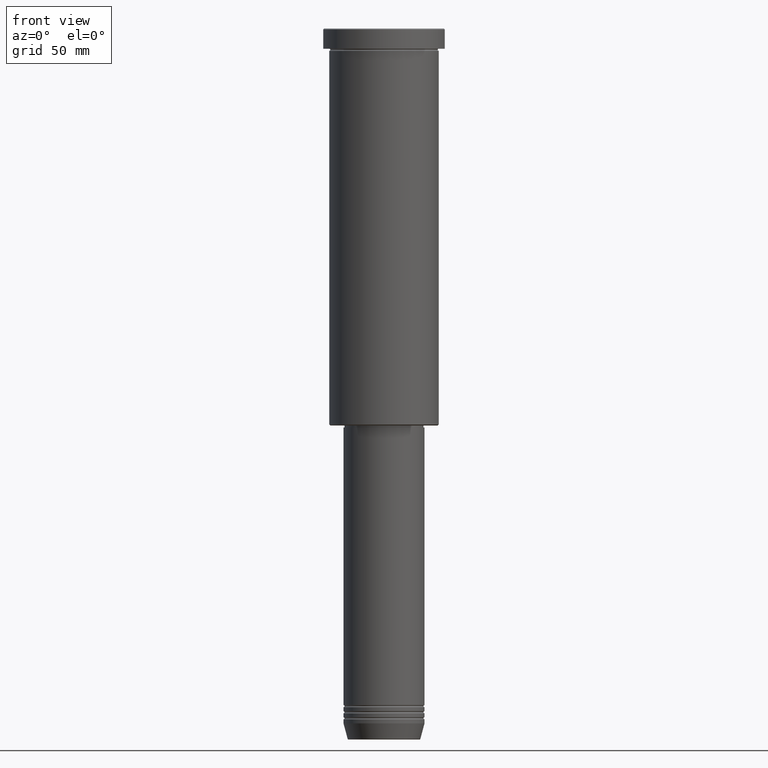
[diagram: clean part render]
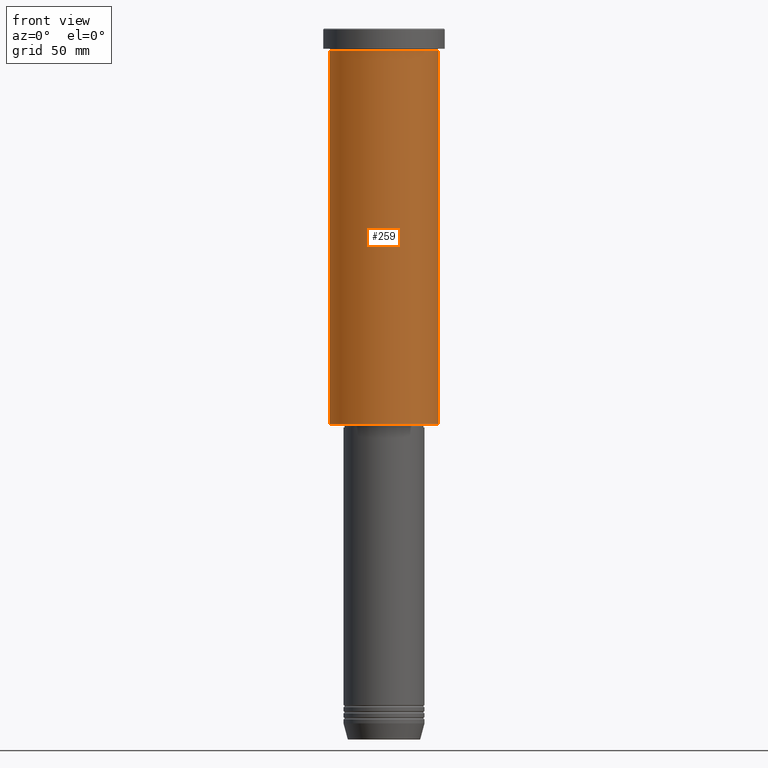
[diagram: same view with one face highlighted and labeled with its STEP entity id]
A machine part, front view. The second image highlights one B-rep face of the part: STEP entity #259.
In plain terms, the highlighted cylindrical surface (partial cylindrical patch) has radius 27 mm, axis along (-0, -0, 1).
Its self-contained STEP definition (entity closure, byte-faithful):
#31 = ORIENTED_EDGE ( 'NONE', *, *, #1048, .F. ) ;
#35 = FACE_OUTER_BOUND ( 'NONE', #36, .T. ) ;
#36 = EDGE_LOOP ( 'NONE', ( #31, #677, #962, #153 ) ) ;
#39 = CARTESIAN_POINT ( 'NONE',  ( -27.00000000000000355, 3.306546357697854128E-15, 0.000000000000000000 ) ) ;
#54 = LINE ( 'NONE', #39, #670 ) ;
#91 = CARTESIAN_POINT ( 'NONE',  ( 27.00000000000000355, 0.000000000000000000, 0.000000000000000000 ) ) ;
#121 = DIRECTION ( 'NONE',  ( -0.000000000000000000, -0.000000000000000000, 1.000000000000000000 ) ) ;
#133 = DIRECTION ( 'NONE',  ( -0.000000000000000000, -0.000000000000000000, 1.000000000000000000 ) ) ;
#145 = VERTEX_POINT ( 'NONE', #831 ) ;
#147 = CARTESIAN_POINT ( 'NONE',  ( 0.000000000000000000, 0.000000000000000000, -195.5000000000000568 ) ) ;
#153 = ORIENTED_EDGE ( 'NONE', *, *, #352, .F. ) ;
#177 = CARTESIAN_POINT ( 'NONE',  ( 27.00000000000000355, 0.000000000000000000, -195.5000000000000568 ) ) ;
#179 = CARTESIAN_POINT ( 'NONE',  ( -27.00000000000000355, 3.306546357697854128E-15, -195.5000000000000568 ) ) ;
#259 = ADVANCED_FACE ( 'NONE', ( #35 ), #1020, .T. ) ;
#315 = CARTESIAN_POINT ( 'NONE',  ( 0.000000000000000000, 0.000000000000000000, 0.000000000000000000 ) ) ;
#343 = DIRECTION ( 'NONE',  ( -0.000000000000000000, -0.000000000000000000, 1.000000000000000000 ) ) ;
#352 = EDGE_CURVE ( 'NONE', #788, #145, #1009, .T. ) ;
#420 = DIRECTION ( 'NONE',  ( -1.000000000000000000, 0.000000000000000000, 0.000000000000000000 ) ) ;
#453 = CARTESIAN_POINT ( 'NONE',  ( -27.00000000000000355, 3.306546357697854128E-15, -10.99999999999999289 ) ) ;
#575 = VECTOR ( 'NONE', #822, 1000.000000000000000 ) ;
#590 = CIRCLE ( 'NONE', #939, 27.00000000000000355 ) ;
#636 = LINE ( 'NONE', #91, #575 ) ;
#646 = DIRECTION ( 'NONE',  ( 1.000000000000000000, 0.000000000000000000, 0.000000000000000000 ) ) ;
#670 = VECTOR ( 'NONE', #343, 1000.000000000000000 ) ;
#677 = ORIENTED_EDGE ( 'NONE', *, *, #957, .T. ) ;
#744 = VERTEX_POINT ( 'NONE', #179 ) ;
#745 = CARTESIAN_POINT ( 'NONE',  ( 0.000000000000000000, 0.000000000000000000, -10.99999999999999289 ) ) ;
#788 = VERTEX_POINT ( 'NONE', #453 ) ;
#822 = DIRECTION ( 'NONE',  ( -0.000000000000000000, -0.000000000000000000, 1.000000000000000000 ) ) ;
#831 = CARTESIAN_POINT ( 'NONE',  ( 27.00000000000000355, 0.000000000000000000, -10.99999999999999289 ) ) ;
#876 = EDGE_CURVE ( 'NONE', #1137, #145, #636, .T. ) ;
#895 = AXIS2_PLACEMENT_3D ( 'NONE', #745, #942, #646 ) ;
#939 = AXIS2_PLACEMENT_3D ( 'NONE', #147, #133, #420 ) ;
#942 = DIRECTION ( 'NONE',  ( -0.000000000000000000, -0.000000000000000000, 1.000000000000000000 ) ) ;
#948 = DIRECTION ( 'NONE',  ( 1.000000000000000000, 0.000000000000000000, 0.000000000000000000 ) ) ;
#957 = EDGE_CURVE ( 'NONE', #744, #1137, #590, .T. ) ;
#962 = ORIENTED_EDGE ( 'NONE', *, *, #876, .T. ) ;
#1009 = CIRCLE ( 'NONE', #895, 27.00000000000000355 ) ;
#1020 = CYLINDRICAL_SURFACE ( 'NONE', #1066, 27.00000000000000355 ) ;
#1048 = EDGE_CURVE ( 'NONE', #744, #788, #54, .T. ) ;
#1066 = AXIS2_PLACEMENT_3D ( 'NONE', #315, #121, #948 ) ;
#1137 = VERTEX_POINT ( 'NONE', #177 ) ;